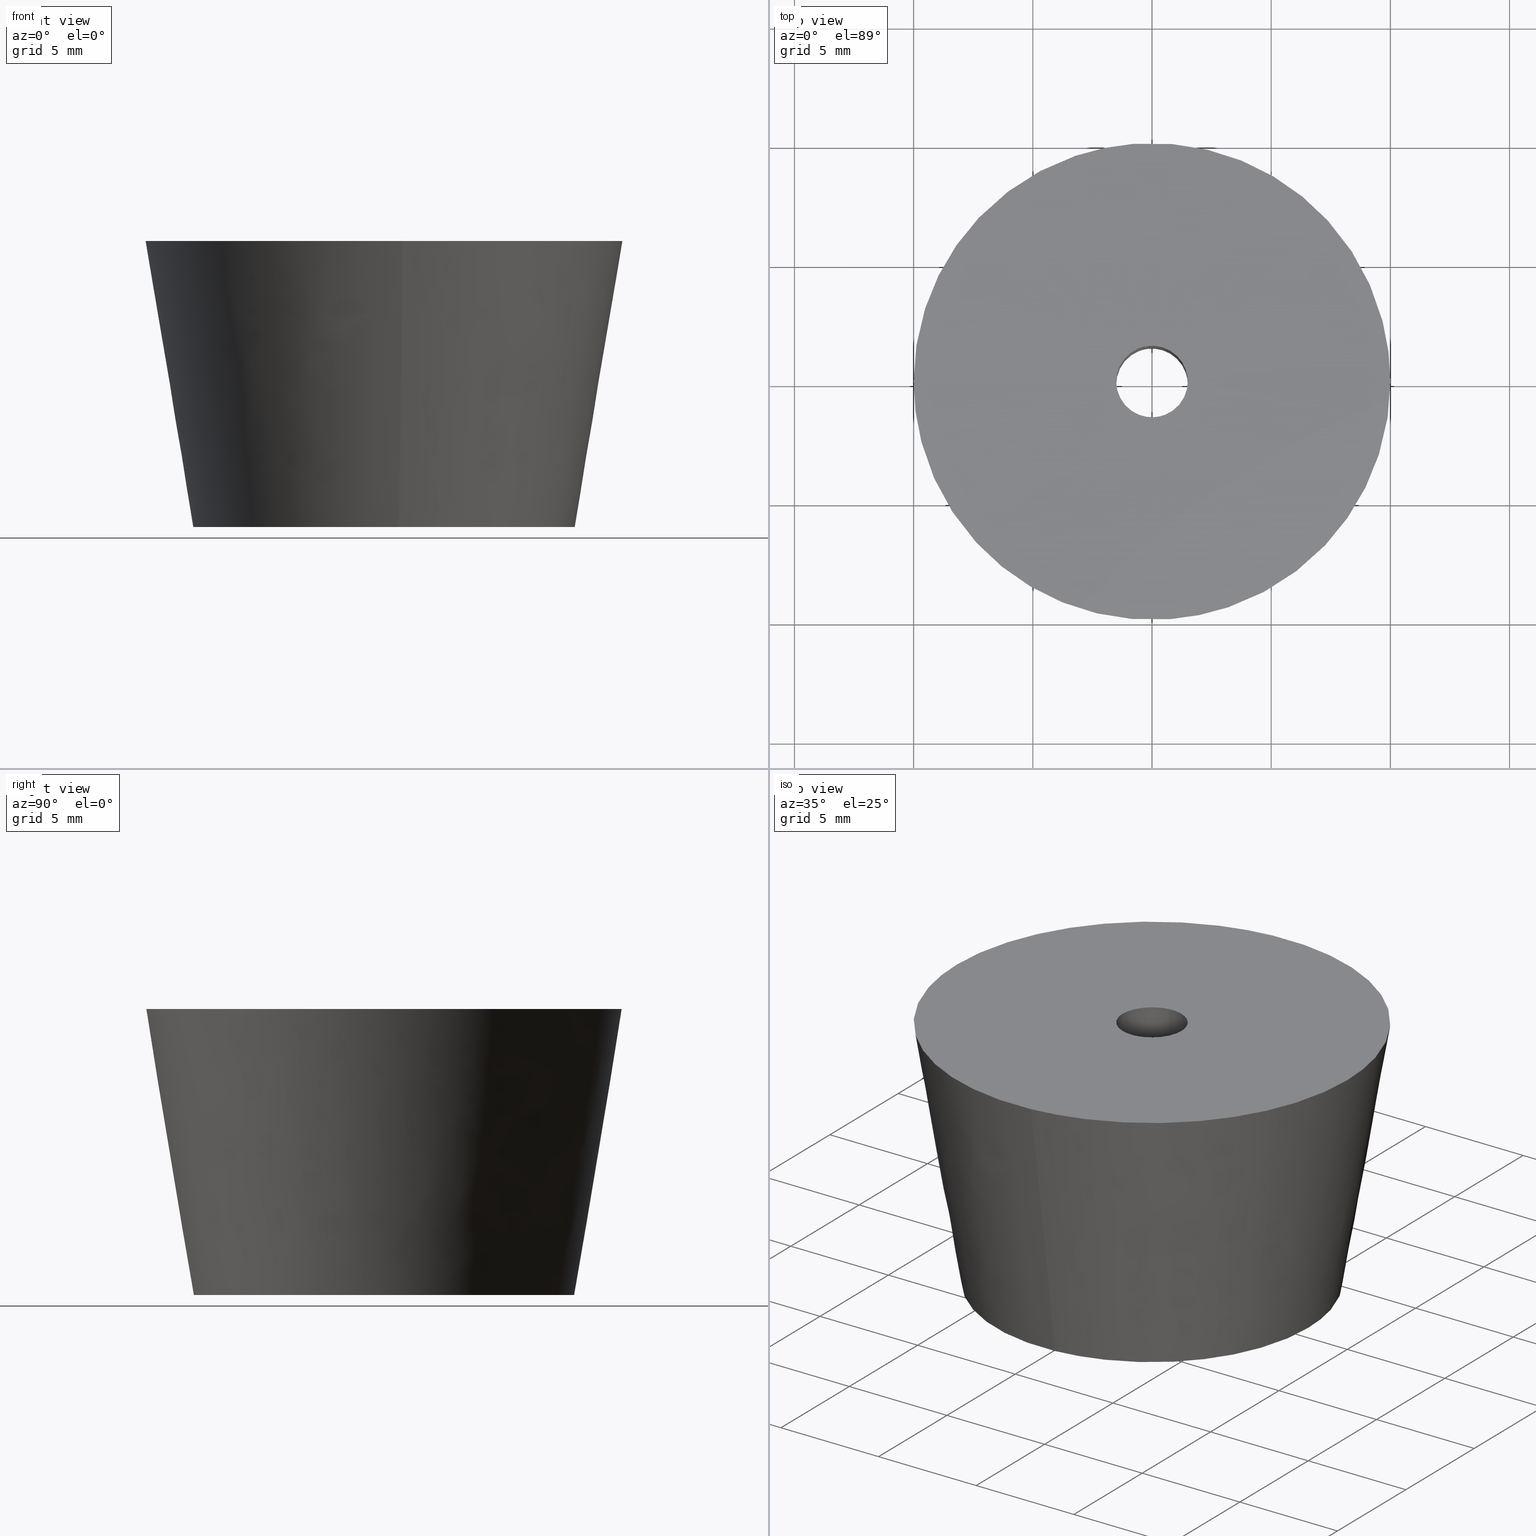
[diagram: canonical four-view strip — front | top / right | iso, engineering-drawing reading convention]
A machine part, canonical four-view strip (front | top / right | iso — engineering-drawing reading convention). The complete STEP part file that produces these views, byte-faithful:
ISO-10303-21;
HEADER;
/****************************************************************
 * Generated by software with PDE/Lib inside                    *
 * PDElib Version 4.4.1-0003, patched  Thursday August 19 11:58 *
 * International Technegroup Inc. (www.iti-oh.com)              *
 ****************************************************************/
FILE_DESCRIPTION((''),'2;1');
FILE_NAME('','2005-12-14T14:09:18',(''),(''),'','CADfix','');
FILE_SCHEMA(('AUTOMOTIVE_DESIGN'));
ENDSEC;
DATA;
#5=APPLICATION_CONTEXT('automotive design');
#6=APPLICATION_PROTOCOL_DEFINITION('Draft International Standard','automotive_design',1998,#5);
#7=PRODUCT_CONTEXT('None',#5,'mechanical');
#8=PRODUCT('rubber foot','','None',(#7));
#9=PRODUCT_RELATED_PRODUCT_CATEGORY('part','description',(#8));
#10=PRODUCT_DEFINITION_FORMATION('None','None',#8);
#11=PRODUCT_DEFINITION_CONTEXT('part definition',#5,'design');
#12=PRODUCT_DEFINITION('None','None',#10,#11);
#18=(NAMED_UNIT(*)PLANE_ANGLE_UNIT()SI_UNIT($,.RADIAN.));
#19=DIMENSIONAL_EXPONENTS(0.0,0.0,0.0,0.0,0.0,0.0,0.0);
#20=PLANE_ANGLE_MEASURE_WITH_UNIT(PLANE_ANGLE_MEASURE(0.017453292500000),#18);
#24=(CONVERSION_BASED_UNIT('DEGREE',#20)NAMED_UNIT(#19)PLANE_ANGLE_UNIT());
#28=(NAMED_UNIT(*)SI_UNIT($,.STERADIAN.)SOLID_ANGLE_UNIT());
#32=(LENGTH_UNIT()NAMED_UNIT(*)SI_UNIT(.MILLI.,.METRE.));
#34=UNCERTAINTY_MEASURE_WITH_UNIT(LENGTH_MEASURE(0.001000000000000),#32,'DISTANCE_ACCURACY_VALUE','');
#36=(GEOMETRIC_REPRESENTATION_CONTEXT(3)GLOBAL_UNCERTAINTY_ASSIGNED_CONTEXT((#34))GLOBAL_UNIT_ASSIGNED_CONTEXT((#24,#28,#32))REPRESENTATION_CONTEXT('None','None'));
#37=AXIS2_PLACEMENT_3D('',#38,#39,#40);
#38=CARTESIAN_POINT('',(0.0,0.0,0.0));
#39=DIRECTION('',(0.0,0.0,1.0));
#40=DIRECTION('',(1.0,0.0,0.0));
#41=ADVANCED_BREP_SHAPE_REPRESENTATION('',(#37,#657),#36);
#42=PRODUCT_DEFINITION_SHAPE('','',#12);
#43=SHAPE_DEFINITION_REPRESENTATION(#42,#41);
#44=CARTESIAN_POINT('',(-0.177051351985138,1.489514289545500,12.175000000000002));
#45=CARTESIAN_POINT('',(-0.134422092956966,1.494581423172908,12.175000000000002));
#46=CARTESIAN_POINT('',(-0.091572809302285,1.497202197632800,12.175000000000001));
#47=CARTESIAN_POINT('',(1.405629388330515,1.588775006935085,12.175000000000001));
#48=CARTESIAN_POINT('',(1.497202197632800,0.091572809302285,12.175000000000001));
#49=CARTESIAN_POINT('',(1.588775006935085,-1.405629388330515,12.175000000000001));
#50=CARTESIAN_POINT('',(0.091572809302285,-1.497202197632800,12.175000000000001));
#51=CARTESIAN_POINT('',(-0.177051351985138,1.489514289545500,4.820625000000000));
#52=CARTESIAN_POINT('',(-0.134422092956966,1.494581423172908,4.820624999999999));
#53=CARTESIAN_POINT('',(-0.091572809302285,1.497202197632800,4.820624999999999));
#54=CARTESIAN_POINT('',(1.405629388330515,1.588775006935085,4.820624999999999));
#55=CARTESIAN_POINT('',(1.497202197632800,0.091572809302285,4.820624999999999));
#56=CARTESIAN_POINT('',(1.588775006935085,-1.405629388330515,4.820624999999999));
#57=CARTESIAN_POINT('',(0.091572809302285,-1.497202197632800,4.820624999999999));
#65=(BOUNDED_SURFACE()B_SPLINE_SURFACE(2,1,((#44,#51),(#45,#52),(#46,#53),(#47,#54),(#48,#55),(#49,#56),(#50,#57)),.UNSPECIFIED.,.F.,.F.,.U.)B_SPLINE_SURFACE_WITH_KNOTS((3,2,2,3),(2,2),(3.078760800517997,3.141592653589793,4.712388980384690,6.283185307179586),(0.0,7.354375000000004),.UNSPECIFIED.)GEOMETRIC_REPRESENTATION_ITEM()RATIONAL_B_SPLINE_SURFACE(((0.977505800795127,0.977505800795127),(0.988284271247462,0.988284271247462),(1.0,1.0),(0.707106781186548,0.707106781186548),(1.0,1.0),(0.707106781186548,0.707106781186548),(1.0,1.0)))REPRESENTATION_ITEM('')SURFACE());
#66=CARTESIAN_POINT('',(-0.177051352012515,1.489514289542246,12.0));
#67=VERTEX_POINT('',#66);
#68=CARTESIAN_POINT('',(1.500000000000000,0.0,12.0));
#69=VERTEX_POINT('',#68);
#70=CARTESIAN_POINT('',(-0.177051352012515,1.489514289542245,12.000000000000002));
#71=CARTESIAN_POINT('',(-0.088836179505531,1.500000000000000,12.0));
#72=CARTESIAN_POINT('',(0.0,1.500000000000000,12.0));
#73=CARTESIAN_POINT('',(1.500000000000000,1.500000000000000,12.0));
#74=CARTESIAN_POINT('',(1.500000000000000,0.0,12.0));
#82=(BOUNDED_CURVE()B_SPLINE_CURVE(2,(#70,#71,#72,#73,#74),.UNSPECIFIED.,.F.,.U.)B_SPLINE_CURVE_WITH_KNOTS((3,2,3),(0.229562473509432,0.250000000000000,0.500000000000000),.UNSPECIFIED.)CURVE()GEOMETRIC_REPRESENTATION_ITEM()RATIONAL_B_SPLINE_CURVE((0.956026754175709,0.976055948326369,1.0,0.707106781186548,1.0))REPRESENTATION_ITEM(''));
#83=EDGE_CURVE('',#67,#69,#82,.T.);
#84=ORIENTED_EDGE('',*,*,#83,.F.);
#85=CARTESIAN_POINT('',(-0.177051352012514,1.489514289542246,5.000000000000001));
#86=VERTEX_POINT('',#85);
#87=CARTESIAN_POINT('',(-0.177051352012515,1.489514289542246,12.0));
#88=CARTESIAN_POINT('',(-0.177051352012514,1.489514289542246,5.000000000000001));
#89=QUASI_UNIFORM_CURVE('',1,(#87,#88),.UNSPECIFIED.,.F.,.U.);
#90=EDGE_CURVE('',#67,#86,#89,.T.);
#91=ORIENTED_EDGE('',*,*,#90,.T.);
#92=CARTESIAN_POINT('',(1.500000000000000,0.0,5.0));
#93=VERTEX_POINT('',#92);
#94=CARTESIAN_POINT('',(-0.177051352012514,1.489514289542245,5.000000000000001));
#95=CARTESIAN_POINT('',(-0.088836179505531,1.500000000000000,5.000000000000001));
#96=CARTESIAN_POINT('',(0.0,1.500000000000000,5.0));
#97=CARTESIAN_POINT('',(1.500000000000000,1.500000000000000,5.000000000000001));
#98=CARTESIAN_POINT('',(1.500000000000000,0.0,5.0));
#106=(BOUNDED_CURVE()B_SPLINE_CURVE(2,(#94,#95,#96,#97,#98),.UNSPECIFIED.,.F.,.U.)B_SPLINE_CURVE_WITH_KNOTS((3,2,3),(0.229562473509432,0.250000000000000,0.500000000000000),.UNSPECIFIED.)CURVE()GEOMETRIC_REPRESENTATION_ITEM()RATIONAL_B_SPLINE_CURVE((0.956026754175709,0.976055948326369,1.0,0.707106781186548,1.0))REPRESENTATION_ITEM(''));
#107=EDGE_CURVE('',#86,#93,#106,.T.);
#108=ORIENTED_EDGE('',*,*,#107,.T.);
#109=CARTESIAN_POINT('',(0.091572809335385,-1.497202197630776,4.999999999999999));
#110=VERTEX_POINT('',#109);
#111=CARTESIAN_POINT('',(1.500000000000000,0.0,5.0));
#112=CARTESIAN_POINT('',(1.500000000000001,-1.411059100296042,5.0));
#113=CARTESIAN_POINT('',(0.091572809335385,-1.497202197630776,4.999999999999999));
#121=(BOUNDED_CURVE()B_SPLINE_CURVE(2,(#111,#112,#113),.UNSPECIFIED.,.F.,.U.)B_SPLINE_CURVE_WITH_KNOTS((3,3),(0.500000000000000,0.739332962234340),.UNSPECIFIED.)CURVE()GEOMETRIC_REPRESENTATION_ITEM()RATIONAL_B_SPLINE_CURVE((1.0,0.719603993292103,0.976072041656852))REPRESENTATION_ITEM(''));
#122=EDGE_CURVE('',#93,#110,#121,.T.);
#123=ORIENTED_EDGE('',*,*,#122,.T.);
#124=CARTESIAN_POINT('',(0.091572809335385,-1.497202197630776,12.0));
#125=VERTEX_POINT('',#124);
#126=CARTESIAN_POINT('',(0.091572809335385,-1.497202197630776,12.0));
#127=CARTESIAN_POINT('',(0.091572809335385,-1.497202197630776,4.999999999999999));
#128=QUASI_UNIFORM_CURVE('',1,(#126,#127),.UNSPECIFIED.,.F.,.U.);
#129=EDGE_CURVE('',#125,#110,#128,.T.);
#130=ORIENTED_EDGE('',*,*,#129,.F.);
#131=CARTESIAN_POINT('',(1.500000000000000,0.0,12.0));
#132=CARTESIAN_POINT('',(1.500000000000001,-1.411059100296042,12.0));
#133=CARTESIAN_POINT('',(0.091572809335385,-1.497202197630776,12.0));
#141=(BOUNDED_CURVE()B_SPLINE_CURVE(2,(#131,#132,#133),.UNSPECIFIED.,.F.,.U.)B_SPLINE_CURVE_WITH_KNOTS((3,3),(0.500000000000000,0.739332962234340),.UNSPECIFIED.)CURVE()GEOMETRIC_REPRESENTATION_ITEM()RATIONAL_B_SPLINE_CURVE((1.0,0.719603993292103,0.976072041656852))REPRESENTATION_ITEM(''));
#142=EDGE_CURVE('',#69,#125,#141,.T.);
#143=ORIENTED_EDGE('',*,*,#142,.F.);
#144=EDGE_LOOP('',(#84,#91,#108,#123,#130,#143));
#145=FACE_OUTER_BOUND('',#144,.T.);
#146=ADVANCED_FACE('',(#145),#65,.F.);
#147=CARTESIAN_POINT('',(0.091572809302285,-1.497202197632800,12.175000000000001));
#148=CARTESIAN_POINT('',(-1.405629388330515,-1.588775006935085,12.175000000000001));
#149=CARTESIAN_POINT('',(-1.497202197632800,-0.091572809302285,12.175000000000001));
#150=CARTESIAN_POINT('',(-1.583679295098791,1.322315236259252,12.175000000000002));
#151=CARTESIAN_POINT('',(-0.177051351985138,1.489514289545500,12.175000000000002));
#152=CARTESIAN_POINT('',(0.091572809302285,-1.497202197632800,4.820624999999999));
#153=CARTESIAN_POINT('',(-1.405629388330515,-1.588775006935085,4.820624999999999));
#154=CARTESIAN_POINT('',(-1.497202197632800,-0.091572809302285,4.820624999999999));
#155=CARTESIAN_POINT('',(-1.583679295098791,1.322315236259252,4.820624999999999));
#156=CARTESIAN_POINT('',(-0.177051351985138,1.489514289545500,4.820625000000000));
#164=(BOUNDED_SURFACE()B_SPLINE_SURFACE(2,1,((#147,#152),(#148,#153),(#149,#154),(#150,#155),(#151,#156)),.UNSPECIFIED.,.F.,.F.,.U.)B_SPLINE_SURFACE_WITH_KNOTS((3,2,3),(2,2),(0.0,1.570796326794897,3.078760800517997),(0.0,7.354375000000004),.UNSPECIFIED.)GEOMETRIC_REPRESENTATION_ITEM()RATIONAL_B_SPLINE_SURFACE(((1.0,1.0),(0.707106781186548,0.707106781186548),(1.0,1.0),(0.718822509939086,0.718822509939086),(0.977505800795127,0.977505800795127)))REPRESENTATION_ITEM('')SURFACE());
#165=CARTESIAN_POINT('',(-1.500000000000000,0.0,12.0));
#166=VERTEX_POINT('',#165);
#167=CARTESIAN_POINT('',(-1.500000000000000,0.0,12.0));
#168=CARTESIAN_POINT('',(-1.500000000000000,1.332261788877733,12.0));
#169=CARTESIAN_POINT('',(-0.177051352012515,1.489514289542246,12.000000000000005));
#177=(BOUNDED_CURVE()B_SPLINE_CURVE(2,(#167,#168,#169),.UNSPECIFIED.,.F.,.U.)B_SPLINE_CURVE_WITH_KNOTS((3,3),(0.0,0.229562473509432),.UNSPECIFIED.)CURVE()GEOMETRIC_REPRESENTATION_ITEM()RATIONAL_B_SPLINE_CURVE((1.0,0.731050832860179,0.956026754175709))REPRESENTATION_ITEM(''));
#178=EDGE_CURVE('',#166,#67,#177,.T.);
#179=ORIENTED_EDGE('',*,*,#178,.F.);
#180=CARTESIAN_POINT('',(0.091572809335385,-1.497202197630776,11.999999999999996));
#181=CARTESIAN_POINT('',(0.045829144981075,-1.500000000000000,12.000000000000005));
#182=CARTESIAN_POINT('',(0.0,-1.500000000000000,12.0));
#183=CARTESIAN_POINT('',(-1.500000000000000,-1.500000000000000,12.0));
#184=CARTESIAN_POINT('',(-1.500000000000000,0.0,12.0));
#192=(BOUNDED_CURVE()B_SPLINE_CURVE(2,(#180,#181,#182,#183,#184),.UNSPECIFIED.,.F.,.U.)B_SPLINE_CURVE_WITH_KNOTS((3,2,3),(0.739332962234339,0.750000000000000,1.0),.UNSPECIFIED.)CURVE()GEOMETRIC_REPRESENTATION_ITEM()RATIONAL_B_SPLINE_CURVE((0.976072041656851,0.987502787894444,1.0,0.707106781186548,1.0))REPRESENTATION_ITEM(''));
#193=EDGE_CURVE('',#125,#166,#192,.T.);
#194=ORIENTED_EDGE('',*,*,#193,.F.);
#195=ORIENTED_EDGE('',*,*,#129,.T.);
#196=CARTESIAN_POINT('',(-1.500000000000000,0.0,5.0));
#197=VERTEX_POINT('',#196);
#198=CARTESIAN_POINT('',(0.091572809335385,-1.497202197630776,4.999999999999999));
#199=CARTESIAN_POINT('',(0.045829144981075,-1.500000000000000,5.0));
#200=CARTESIAN_POINT('',(0.0,-1.500000000000000,5.0));
#201=CARTESIAN_POINT('',(-1.500000000000000,-1.500000000000000,5.000000000000001));
#202=CARTESIAN_POINT('',(-1.500000000000000,0.0,5.0));
#210=(BOUNDED_CURVE()B_SPLINE_CURVE(2,(#198,#199,#200,#201,#202),.UNSPECIFIED.,.F.,.U.)B_SPLINE_CURVE_WITH_KNOTS((3,2,3),(0.739332962234339,0.750000000000000,1.0),.UNSPECIFIED.)CURVE()GEOMETRIC_REPRESENTATION_ITEM()RATIONAL_B_SPLINE_CURVE((0.976072041656851,0.987502787894444,1.0,0.707106781186548,1.0))REPRESENTATION_ITEM(''));
#211=EDGE_CURVE('',#110,#197,#210,.T.);
#212=ORIENTED_EDGE('',*,*,#211,.T.);
#213=CARTESIAN_POINT('',(-1.500000000000000,0.0,5.0));
#214=CARTESIAN_POINT('',(-1.500000000000001,1.332261788877735,4.999999999999999));
#215=CARTESIAN_POINT('',(-0.177051352012514,1.489514289542246,5.000000000000001));
#223=(BOUNDED_CURVE()B_SPLINE_CURVE(2,(#213,#214,#215),.UNSPECIFIED.,.F.,.U.)B_SPLINE_CURVE_WITH_KNOTS((3,3),(0.0,0.229562473509432),.UNSPECIFIED.)CURVE()GEOMETRIC_REPRESENTATION_ITEM()RATIONAL_B_SPLINE_CURVE((1.0,0.731050832860178,0.956026754175709))REPRESENTATION_ITEM(''));
#224=EDGE_CURVE('',#197,#86,#223,.T.);
#225=ORIENTED_EDGE('',*,*,#224,.T.);
#226=ORIENTED_EDGE('',*,*,#90,.F.);
#227=EDGE_LOOP('',(#179,#194,#195,#212,#225,#226));
#228=FACE_OUTER_BOUND('',#227,.T.);
#229=ADVANCED_FACE('',(#228),#164,.F.);
#230=CARTESIAN_POINT('',(-0.623749811036372,7.925492803178367,-0.300000000000000));
#231=CARTESIAN_POINT('',(-8.549242614214739,7.301742992141994,-0.300000000000000));
#232=CARTESIAN_POINT('',(-7.925492803178367,-0.623749811036372,-0.300000000000000));
#233=CARTESIAN_POINT('',(-7.301742992141994,-8.549242614214739,-0.300000000000000));
#234=CARTESIAN_POINT('',(0.623749811036372,-7.925492803178367,-0.300000000000000));
#235=CARTESIAN_POINT('',(-0.788611985934507,10.020265350685101,12.307499999999999));
#236=CARTESIAN_POINT('',(-10.808877336619602,9.231653364750589,12.307500000000005));
#237=CARTESIAN_POINT('',(-10.020265350685101,-0.788611985934507,12.307499999999999));
#238=CARTESIAN_POINT('',(-9.231653364750589,-10.808877336619602,12.307500000000005));
#239=CARTESIAN_POINT('',(0.788611985934507,-10.020265350685101,12.307499999999999));
#247=(BOUNDED_SURFACE()B_SPLINE_SURFACE(2,1,((#230,#235),(#231,#236),(#232,#237),(#233,#238),(#234,#239)),.UNSPECIFIED.,.F.,.F.,.U.)B_SPLINE_SURFACE_WITH_KNOTS((3,2,3),(2,2),(0.0,16.653456275210271,33.306912550420542),(0.0,12.781404766789141),.UNSPECIFIED.)GEOMETRIC_REPRESENTATION_ITEM()RATIONAL_B_SPLINE_SURFACE(((1.0,1.0),(0.707106781186548,0.707106781186548),(1.0,1.0),(0.707106781186548,0.707106781186548),(1.0,1.0)))REPRESENTATION_ITEM('')SURFACE());
#248=CARTESIAN_POINT('',(-10.0,0.0,12.0));
#249=VERTEX_POINT('',#248);
#250=CARTESIAN_POINT('',(-0.784585127532863,9.969173373309561,11.999997470845130));
#251=VERTEX_POINT('',#250);
#252=CARTESIAN_POINT('',(-10.0,0.0,12.0));
#253=CARTESIAN_POINT('',(-9.999999983463788,9.243910098048547,11.999998735422569));
#254=CARTESIAN_POINT('',(-0.784585127532863,9.969173373309561,11.999997470845130));
#262=(BOUNDED_CURVE()B_SPLINE_CURVE(2,(#252,#253,#254),.UNSPECIFIED.,.F.,.U.)B_SPLINE_CURVE_WITH_KNOTS((3,3),(0.0,0.236331400309219),.UNSPECIFIED.)CURVE()GEOMETRIC_REPRESENTATION_ITEM()RATIONAL_B_SPLINE_CURVE((1.0,0.723120541826970,0.969723564189059))REPRESENTATION_ITEM(''));
#263=EDGE_CURVE('',#249,#251,#262,.T.);
#264=ORIENTED_EDGE('',*,*,#263,.T.);
#265=CARTESIAN_POINT('',(-0.627667634998426,7.975338697900941,-0.000002247642436));
#266=VERTEX_POINT('',#265);
#267=CARTESIAN_POINT('',(-0.627667634998426,7.975338697900941,-0.000002247642436));
#268=CARTESIAN_POINT('',(-0.784585127532863,9.969173373309561,11.999997470845130));
#269=QUASI_UNIFORM_CURVE('',1,(#267,#268),.UNSPECIFIED.,.F.,.U.);
#270=EDGE_CURVE('',#266,#251,#269,.T.);
#271=ORIENTED_EDGE('',*,*,#270,.F.);
#272=CARTESIAN_POINT('',(-8.0,0.0,0.0));
#273=VERTEX_POINT('',#272);
#274=CARTESIAN_POINT('',(-8.0,0.0,0.0));
#275=CARTESIAN_POINT('',(-7.999999985304389,7.395128491465187,-0.000001123821218));
#276=CARTESIAN_POINT('',(-0.627667634998426,7.975338697900941,-0.000002247642436));
#284=(BOUNDED_CURVE()B_SPLINE_CURVE(2,(#274,#275,#276),.UNSPECIFIED.,.F.,.U.)B_SPLINE_CURVE_WITH_KNOTS((3,3),(0.0,0.236331410284618),.UNSPECIFIED.)CURVE()GEOMETRIC_REPRESENTATION_ITEM()RATIONAL_B_SPLINE_CURVE((1.0,0.723120530140062,0.969723585006977))REPRESENTATION_ITEM(''));
#285=EDGE_CURVE('',#273,#266,#284,.T.);
#286=ORIENTED_EDGE('',*,*,#285,.F.);
#287=CARTESIAN_POINT('',(0.627667634998426,-7.975338697900941,-0.000002247642436));
#288=VERTEX_POINT('',#287);
#289=CARTESIAN_POINT('',(0.627667634998426,-7.975338697900941,-0.000002247642436));
#290=CARTESIAN_POINT('',(0.314318264650338,-7.999999633327826,-0.000002206826229));
#291=CARTESIAN_POINT('',(-0.000000028280102,-7.999999640664289,-0.000002162671533));
#292=CARTESIAN_POINT('',(-8.000000013584492,-7.999999827391257,-0.000001038850315));
#293=CARTESIAN_POINT('',(-8.0,0.0,0.0));
#301=(BOUNDED_CURVE()B_SPLINE_CURVE(2,(#289,#290,#291,#292,#293),.UNSPECIFIED.,.F.,.U.)B_SPLINE_CURVE_WITH_KNOTS((3,2,3),(0.736331410284618,0.750000000000000,1.0),.UNSPECIFIED.)CURVE()GEOMETRIC_REPRESENTATION_ITEM()RATIONAL_B_SPLINE_CURVE((0.969723585006977,0.983986251046486,1.0,0.707106781186548,1.0))REPRESENTATION_ITEM(''));
#302=EDGE_CURVE('',#288,#273,#301,.T.);
#303=ORIENTED_EDGE('',*,*,#302,.F.);
#304=CARTESIAN_POINT('',(0.784585127532862,-9.969173373309561,11.999997470845139));
#305=VERTEX_POINT('',#304);
#306=CARTESIAN_POINT('',(0.627667634998426,-7.975338697900941,-0.000002247642436));
#307=CARTESIAN_POINT('',(0.784585127532862,-9.969173373309561,11.999997470845139));
#308=QUASI_UNIFORM_CURVE('',1,(#306,#307),.UNSPECIFIED.,.F.,.U.);
#309=EDGE_CURVE('',#288,#305,#308,.T.);
#310=ORIENTED_EDGE('',*,*,#309,.T.);
#311=CARTESIAN_POINT('',(0.784585127532862,-9.969173373309561,11.999997470845143));
#312=CARTESIAN_POINT('',(0.392898125818107,-9.999999587403069,11.999997516773519));
#313=CARTESIAN_POINT('',(-0.000000031822138,-9.999999595658411,11.999997566458530));
#314=CARTESIAN_POINT('',(-10.000000015285925,-9.999999805772458,11.999998831035967));
#315=CARTESIAN_POINT('',(-10.0,0.0,12.0));
#323=(BOUNDED_CURVE()B_SPLINE_CURVE(2,(#311,#312,#313,#314,#315),.UNSPECIFIED.,.F.,.U.)B_SPLINE_CURVE_WITH_KNOTS((3,2,3),(0.736331400309219,0.750000000000000,1.0),.UNSPECIFIED.)CURVE()GEOMETRIC_REPRESENTATION_ITEM()RATIONAL_B_SPLINE_CURVE((0.969723564189059,0.983986239359578,1.0,0.707106781186548,1.0))REPRESENTATION_ITEM(''));
#324=EDGE_CURVE('',#305,#249,#323,.T.);
#325=ORIENTED_EDGE('',*,*,#324,.T.);
#326=EDGE_LOOP('',(#264,#271,#286,#303,#310,#325));
#327=FACE_OUTER_BOUND('',#326,.T.);
#328=ADVANCED_FACE('',(#327),#247,.T.);
#329=CARTESIAN_POINT('',(0.623749811036372,-7.925492803178367,-0.300000000000000));
#330=CARTESIAN_POINT('',(8.549242614214739,-7.301742992141994,-0.300000000000000));
#331=CARTESIAN_POINT('',(7.925492803178367,0.623749811036372,-0.300000000000000));
#332=CARTESIAN_POINT('',(7.301742992141994,8.549242614214739,-0.300000000000000));
#333=CARTESIAN_POINT('',(-0.623749811036372,7.925492803178367,-0.300000000000000));
#334=CARTESIAN_POINT('',(0.788611985934507,-10.020265350685101,12.307499999999999));
#335=CARTESIAN_POINT('',(10.808877336619602,-9.231653364750589,12.307500000000005));
#336=CARTESIAN_POINT('',(10.020265350685101,0.788611985934507,12.307499999999999));
#337=CARTESIAN_POINT('',(9.231653364750589,10.808877336619602,12.307500000000005));
#338=CARTESIAN_POINT('',(-0.788611985934507,10.020265350685101,12.307499999999999));
#346=(BOUNDED_SURFACE()B_SPLINE_SURFACE(2,1,((#329,#334),(#330,#335),(#331,#336),(#332,#337),(#333,#338)),.UNSPECIFIED.,.F.,.F.,.U.)B_SPLINE_SURFACE_WITH_KNOTS((3,2,3),(2,2),(0.0,16.653456275210271,33.306912550420542),(0.0,12.781404766789141),.UNSPECIFIED.)GEOMETRIC_REPRESENTATION_ITEM()RATIONAL_B_SPLINE_SURFACE(((1.0,1.0),(0.707106781186548,0.707106781186548),(1.0,1.0),(0.707106781186548,0.707106781186548),(1.0,1.0)))REPRESENTATION_ITEM('')SURFACE());
#347=CARTESIAN_POINT('',(10.0,0.0,12.0));
#348=VERTEX_POINT('',#347);
#349=CARTESIAN_POINT('',(-0.784585127532863,9.969173373309561,11.999997470845130));
#350=CARTESIAN_POINT('',(-0.392898125818108,9.999999587403069,11.999997516773519));
#351=CARTESIAN_POINT('',(0.000000031822137,9.999999595658411,11.999997566458530));
#352=CARTESIAN_POINT('',(10.000000015285925,9.999999805772458,11.999998831035963));
#353=CARTESIAN_POINT('',(10.0,0.0,12.0));
#361=(BOUNDED_CURVE()B_SPLINE_CURVE(2,(#349,#350,#351,#352,#353),.UNSPECIFIED.,.F.,.U.)B_SPLINE_CURVE_WITH_KNOTS((3,2,3),(0.236331400309219,0.250000000000000,0.500000000000000),.UNSPECIFIED.)CURVE()GEOMETRIC_REPRESENTATION_ITEM()RATIONAL_B_SPLINE_CURVE((0.969723564189059,0.983986239359578,1.0,0.707106781186548,1.0))REPRESENTATION_ITEM(''));
#362=EDGE_CURVE('',#251,#348,#361,.T.);
#363=ORIENTED_EDGE('',*,*,#362,.T.);
#364=CARTESIAN_POINT('',(10.0,0.0,12.0));
#365=CARTESIAN_POINT('',(9.999999983463788,-9.243910098048547,11.999998735422569));
#366=CARTESIAN_POINT('',(0.784585127532862,-9.969173373309561,11.999997470845143));
#374=(BOUNDED_CURVE()B_SPLINE_CURVE(2,(#364,#365,#366),.UNSPECIFIED.,.F.,.U.)B_SPLINE_CURVE_WITH_KNOTS((3,3),(0.500000000000000,0.736331400309219),.UNSPECIFIED.)CURVE()GEOMETRIC_REPRESENTATION_ITEM()RATIONAL_B_SPLINE_CURVE((1.0,0.723120541826970,0.969723564189059))REPRESENTATION_ITEM(''));
#375=EDGE_CURVE('',#348,#305,#374,.T.);
#376=ORIENTED_EDGE('',*,*,#375,.T.);
#377=ORIENTED_EDGE('',*,*,#309,.F.);
#378=CARTESIAN_POINT('',(8.0,0.0,0.0));
#379=VERTEX_POINT('',#378);
#380=CARTESIAN_POINT('',(8.0,0.0,0.0));
#381=CARTESIAN_POINT('',(7.999999985304389,-7.395128491465187,-0.000001123821218));
#382=CARTESIAN_POINT('',(0.627667634998426,-7.975338697900941,-0.000002247642436));
#390=(BOUNDED_CURVE()B_SPLINE_CURVE(2,(#380,#381,#382),.UNSPECIFIED.,.F.,.U.)B_SPLINE_CURVE_WITH_KNOTS((3,3),(0.500000000000000,0.736331410284618),.UNSPECIFIED.)CURVE()GEOMETRIC_REPRESENTATION_ITEM()RATIONAL_B_SPLINE_CURVE((1.0,0.723120530140062,0.969723585006977))REPRESENTATION_ITEM(''));
#391=EDGE_CURVE('',#379,#288,#390,.T.);
#392=ORIENTED_EDGE('',*,*,#391,.F.);
#393=CARTESIAN_POINT('',(-0.627667634998426,7.975338697900941,-0.000002247642436));
#394=CARTESIAN_POINT('',(-0.314318264650338,7.999999633327826,-0.000002206826229));
#395=CARTESIAN_POINT('',(0.000000028280102,7.999999640664289,-0.000002162671533));
#396=CARTESIAN_POINT('',(8.000000013584492,7.999999827391257,-0.000001038850315));
#397=CARTESIAN_POINT('',(8.0,0.0,0.0));
#405=(BOUNDED_CURVE()B_SPLINE_CURVE(2,(#393,#394,#395,#396,#397),.UNSPECIFIED.,.F.,.U.)B_SPLINE_CURVE_WITH_KNOTS((3,2,3),(0.236331410284618,0.250000000000000,0.500000000000000),.UNSPECIFIED.)CURVE()GEOMETRIC_REPRESENTATION_ITEM()RATIONAL_B_SPLINE_CURVE((0.969723585006977,0.983986251046486,1.0,0.707106781186548,1.0))REPRESENTATION_ITEM(''));
#406=EDGE_CURVE('',#266,#379,#405,.T.);
#407=ORIENTED_EDGE('',*,*,#406,.F.);
#408=ORIENTED_EDGE('',*,*,#270,.T.);
#409=EDGE_LOOP('',(#363,#376,#377,#392,#407,#408));
#410=FACE_OUTER_BOUND('',#409,.T.);
#411=ADVANCED_FACE('',(#410),#346,.T.);
#412=CARTESIAN_POINT('',(-0.472136938627034,3.972038105454666,5.125000000000002));
#413=CARTESIAN_POINT('',(-0.358458914551911,3.985550461794422,5.125000000000001));
#414=CARTESIAN_POINT('',(-0.244194158139428,3.992539193687467,5.125000000000001));
#415=CARTESIAN_POINT('',(3.748345035548039,4.236733351826894,5.125000000000001));
#416=CARTESIAN_POINT('',(3.992539193687467,0.244194158139428,5.125000000000001));
#417=CARTESIAN_POINT('',(4.236733351826894,-3.748345035548039,5.125000000000001));
#418=CARTESIAN_POINT('',(0.244194158139428,-3.992539193687467,5.125000000000001));
#419=CARTESIAN_POINT('',(-0.472136938627034,3.972038105454666,-0.128125000000000));
#420=CARTESIAN_POINT('',(-0.358458914551911,3.985550461794422,-0.128125000000000));
#421=CARTESIAN_POINT('',(-0.244194158139428,3.992539193687467,-0.128125000000000));
#422=CARTESIAN_POINT('',(3.748345035548039,4.236733351826894,-0.128125000000000));
#423=CARTESIAN_POINT('',(3.992539193687467,0.244194158139428,-0.128125000000000));
#424=CARTESIAN_POINT('',(4.236733351826894,-3.748345035548039,-0.128125000000000));
#425=CARTESIAN_POINT('',(0.244194158139428,-3.992539193687467,-0.128125000000000));
#433=(BOUNDED_SURFACE()B_SPLINE_SURFACE(2,1,((#412,#419),(#413,#420),(#414,#421),(#415,#422),(#416,#423),(#417,#424),(#418,#425)),.UNSPECIFIED.,.F.,.F.,.U.)B_SPLINE_SURFACE_WITH_KNOTS((3,2,2,3),(2,2),(0.0,0.265096679918781,6.892513677888299,13.519930675857820),(0.0,5.253125000000002),.UNSPECIFIED.)GEOMETRIC_REPRESENTATION_ITEM()RATIONAL_B_SPLINE_SURFACE(((0.977505800795127,0.977505800795127),(0.988284271247462,0.988284271247462),(1.0,1.0),(0.707106781186548,0.707106781186548),(1.0,1.0),(0.707106781186548,0.707106781186548),(1.0,1.0)))REPRESENTATION_ITEM('')SURFACE());
#434=CARTESIAN_POINT('',(-0.472129948118010,3.972038936370151,4.401114E-016));
#435=VERTEX_POINT('',#434);
#436=CARTESIAN_POINT('',(4.0,0.0,0.0));
#437=VERTEX_POINT('',#436);
#438=CARTESIAN_POINT('',(-0.472129948118010,3.972038936370151,4.401114E-016));
#439=CARTESIAN_POINT('',(-0.236892946402667,4.0,0.0));
#440=CARTESIAN_POINT('',(0.0,4.0,0.0));
#441=CARTESIAN_POINT('',(4.000000000000000,4.000000000000000,0.0));
#442=CARTESIAN_POINT('',(4.0,0.0,0.0));
#450=(BOUNDED_CURVE()B_SPLINE_CURVE(2,(#438,#439,#440,#441,#442),.UNSPECIFIED.,.F.,.U.)B_SPLINE_CURVE_WITH_KNOTS((3,2,3),(0.229562770949563,0.250000000000000,0.500000000000000),.UNSPECIFIED.)CURVE()GEOMETRIC_REPRESENTATION_ITEM()RATIONAL_B_SPLINE_CURVE((0.956027337171368,0.976056296799159,1.0,0.707106781186548,1.0))REPRESENTATION_ITEM(''));
#451=EDGE_CURVE('',#435,#437,#450,.T.);
#452=ORIENTED_EDGE('',*,*,#451,.T.);
#453=CARTESIAN_POINT('',(0.244192892551057,-3.992539271093766,2.491063E-015));
#454=VERTEX_POINT('',#453);
#455=CARTESIAN_POINT('',(4.0,0.0,0.0));
#456=CARTESIAN_POINT('',(4.000000000000001,-3.762825462623270,0.0));
#457=CARTESIAN_POINT('',(0.244192892551057,-3.992539271093766,2.491063E-015));
#465=(BOUNDED_CURVE()B_SPLINE_CURVE(2,(#455,#456,#457),.UNSPECIFIED.,.F.,.U.)B_SPLINE_CURVE_WITH_KNOTS((3,3),(0.500000000000000,0.739333016937291),.UNSPECIFIED.)CURVE()GEOMETRIC_REPRESENTATION_ITEM()RATIONAL_B_SPLINE_CURVE((1.0,0.719603929203609,0.976072158895718))REPRESENTATION_ITEM(''));
#466=EDGE_CURVE('',#437,#454,#465,.T.);
#467=ORIENTED_EDGE('',*,*,#466,.T.);
#468=CARTESIAN_POINT('',(0.244192908142875,-3.992539270140139,5.0));
#469=VERTEX_POINT('',#468);
#470=CARTESIAN_POINT('',(0.244192908142875,-3.992539270140139,5.0));
#471=CARTESIAN_POINT('',(0.244192892551057,-3.992539271093766,2.491063E-015));
#472=QUASI_UNIFORM_CURVE('',1,(#470,#471),.UNSPECIFIED.,.F.,.U.);
#473=EDGE_CURVE('',#469,#454,#472,.T.);
#474=ORIENTED_EDGE('',*,*,#473,.F.);
#475=CARTESIAN_POINT('',(4.0,0.0,5.0));
#476=VERTEX_POINT('',#475);
#477=CARTESIAN_POINT('',(4.0,0.0,5.0));
#478=CARTESIAN_POINT('',(4.0,-3.762825447901077,5.0));
#479=CARTESIAN_POINT('',(0.244192908142875,-3.992539270140139,5.000000000000001));
#487=(BOUNDED_CURVE()B_SPLINE_CURVE(2,(#477,#478,#479),.UNSPECIFIED.,.F.,.U.)B_SPLINE_CURVE_WITH_KNOTS((3,3),(0.500000000000000,0.739333016263454),.UNSPECIFIED.)CURVE()GEOMETRIC_REPRESENTATION_ITEM()RATIONAL_B_SPLINE_CURVE((1.0,0.719603929993058,0.976072157451557))REPRESENTATION_ITEM(''));
#488=EDGE_CURVE('',#476,#469,#487,.T.);
#489=ORIENTED_EDGE('',*,*,#488,.F.);
#490=CARTESIAN_POINT('',(-0.472130034368349,3.972038926118297,5.0));
#491=VERTEX_POINT('',#490);
#492=CARTESIAN_POINT('',(-0.472130034368349,3.972038926118297,5.0));
#493=CARTESIAN_POINT('',(-0.236892989983728,4.0,5.0));
#494=CARTESIAN_POINT('',(0.0,4.0,5.0));
#495=CARTESIAN_POINT('',(4.000000000000000,4.000000000000000,5.000000000000001));
#496=CARTESIAN_POINT('',(4.0,0.0,5.0));
#504=(BOUNDED_CURVE()B_SPLINE_CURVE(2,(#492,#493,#494,#495,#496),.UNSPECIFIED.,.F.,.U.)B_SPLINE_CURVE_WITH_KNOTS((3,2,3),(0.229562767279762,0.250000000000000,0.500000000000000),.UNSPECIFIED.)CURVE()GEOMETRIC_REPRESENTATION_ITEM()RATIONAL_B_SPLINE_CURVE((0.956027329978387,0.976056292499719,1.0,0.707106781186548,1.0))REPRESENTATION_ITEM(''));
#505=EDGE_CURVE('',#491,#476,#504,.T.);
#506=ORIENTED_EDGE('',*,*,#505,.F.);
#507=CARTESIAN_POINT('',(-0.472130034368349,3.972038926118297,5.0));
#508=CARTESIAN_POINT('',(-0.472129948118010,3.972038936370151,4.401114E-016));
#509=QUASI_UNIFORM_CURVE('',1,(#507,#508),.UNSPECIFIED.,.F.,.U.);
#510=EDGE_CURVE('',#491,#435,#509,.T.);
#511=ORIENTED_EDGE('',*,*,#510,.T.);
#512=EDGE_LOOP('',(#452,#467,#474,#489,#506,#511));
#513=FACE_OUTER_BOUND('',#512,.T.);
#514=ADVANCED_FACE('',(#513),#433,.F.);
#515=CARTESIAN_POINT('',(0.299210877255858,-3.989174226994221,5.124999999999999));
#516=CARTESIAN_POINT('',(0.271781248688852,-3.990851894947137,5.125000000000003));
#517=CARTESIAN_POINT('',(-3.748345035548039,-4.236733351826894,5.125000000000001));
#518=CARTESIAN_POINT('',(-3.992539193687467,-0.244194158139428,5.125000000000001));
#519=CARTESIAN_POINT('',(-4.223144786930110,3.526173963358004,5.125000000000001));
#520=CARTESIAN_POINT('',(-0.444051096566787,3.975376533520318,5.125000000000002));
#521=CARTESIAN_POINT('',(-0.416116205152481,3.978697018813527,5.125000000000002));
#522=CARTESIAN_POINT('',(0.299210877255858,-3.989174226994221,-0.128125000000000));
#523=CARTESIAN_POINT('',(0.271781248688852,-3.990851894947137,-0.128125000000000));
#524=CARTESIAN_POINT('',(-3.748345035548039,-4.236733351826894,-0.128125000000000));
#525=CARTESIAN_POINT('',(-3.992539193687467,-0.244194158139428,-0.128125000000000));
#526=CARTESIAN_POINT('',(-4.223144786930110,3.526173963358004,-0.128125000000000));
#527=CARTESIAN_POINT('',(-0.444051096566787,3.975376533520318,-0.128125000000000));
#528=CARTESIAN_POINT('',(-0.416116205152481,3.978697018813527,-0.128125000000000));
#536=(BOUNDED_SURFACE()B_SPLINE_SURFACE(2,1,((#515,#522),(#516,#523),(#517,#524),(#518,#525),(#519,#526),(#520,#527),(#521,#528)),.UNSPECIFIED.,.F.,.F.,.U.)B_SPLINE_SURFACE_WITH_KNOTS((3,1,2,1,3),(2,2),(0.0,0.064947250903946,6.692364248873464,13.054684566924200,13.119641347048271),(0.0,5.253125000000002),.UNSPECIFIED.)GEOMETRIC_REPRESENTATION_ITEM()RATIONAL_B_SPLINE_SURFACE(((1.005740580191701,1.005740580191701),(1.002870290095850,1.002870290095850),(0.707106781186548,0.707106781186548),(1.0,1.0),(0.718822509939086,0.718822509939086),(0.980146855128439,0.980146855128439),(0.982787909461751,0.982787909461751)))REPRESENTATION_ITEM('')SURFACE());
#537=CARTESIAN_POINT('',(-4.0,0.0,0.0));
#538=VERTEX_POINT('',#537);
#539=CARTESIAN_POINT('',(-4.0,0.0,0.0));
#540=CARTESIAN_POINT('',(-4.000000000000000,3.552704400324676,0.0));
#541=CARTESIAN_POINT('',(-0.472129948118010,3.972038936370151,4.401114E-016));
#549=(BOUNDED_CURVE()B_SPLINE_CURVE(2,(#539,#540,#541),.UNSPECIFIED.,.F.,.U.)B_SPLINE_CURVE_WITH_KNOTS((3,3),(0.0,0.229562770949563),.UNSPECIFIED.)CURVE()GEOMETRIC_REPRESENTATION_ITEM()RATIONAL_B_SPLINE_CURVE((1.0,0.731050484387389,0.956027337171368))REPRESENTATION_ITEM(''));
#550=EDGE_CURVE('',#538,#435,#549,.T.);
#551=ORIENTED_EDGE('',*,*,#550,.T.);
#552=ORIENTED_EDGE('',*,*,#510,.F.);
#553=CARTESIAN_POINT('',(-4.0,0.0,5.0));
#554=VERTEX_POINT('',#553);
#555=CARTESIAN_POINT('',(-4.0,0.0,5.0));
#556=CARTESIAN_POINT('',(-4.000000000000001,3.552704322636881,4.999999999999999));
#557=CARTESIAN_POINT('',(-0.472130034368349,3.972038926118297,5.0));
#565=(BOUNDED_CURVE()B_SPLINE_CURVE(2,(#555,#556,#557),.UNSPECIFIED.,.F.,.U.)B_SPLINE_CURVE_WITH_KNOTS((3,3),(0.0,0.229562767279762),.UNSPECIFIED.)CURVE()GEOMETRIC_REPRESENTATION_ITEM()RATIONAL_B_SPLINE_CURVE((1.0,0.731050488686828,0.956027329978387))REPRESENTATION_ITEM(''));
#566=EDGE_CURVE('',#554,#491,#565,.T.);
#567=ORIENTED_EDGE('',*,*,#566,.F.);
#568=CARTESIAN_POINT('',(0.244192908142875,-3.992539270140139,5.000000000000001));
#569=CARTESIAN_POINT('',(0.122210426443661,-4.0,4.999999999999999));
#570=CARTESIAN_POINT('',(0.0,-4.0,5.0));
#571=CARTESIAN_POINT('',(-4.000000000000000,-4.000000000000000,5.000000000000001));
#572=CARTESIAN_POINT('',(-4.0,0.0,5.0));
#580=(BOUNDED_CURVE()B_SPLINE_CURVE(2,(#568,#569,#570,#571,#572),.UNSPECIFIED.,.F.,.U.)B_SPLINE_CURVE_WITH_KNOTS((3,2,3),(0.739333016263454,0.750000000000000,1.0),.UNSPECIFIED.)CURVE()GEOMETRIC_REPRESENTATION_ITEM()RATIONAL_B_SPLINE_CURVE((0.976072157451557,0.987502851193490,1.0,0.707106781186548,1.0))REPRESENTATION_ITEM(''));
#581=EDGE_CURVE('',#469,#554,#580,.T.);
#582=ORIENTED_EDGE('',*,*,#581,.F.);
#583=ORIENTED_EDGE('',*,*,#473,.T.);
#584=CARTESIAN_POINT('',(0.244192892551057,-3.992539271093766,2.491063E-015));
#585=CARTESIAN_POINT('',(0.122210418625892,-4.000000000000001,0.0));
#586=CARTESIAN_POINT('',(0.0,-4.0,0.0));
#587=CARTESIAN_POINT('',(-4.000000000000000,-4.000000000000000,0.0));
#588=CARTESIAN_POINT('',(-4.0,0.0,0.0));
#596=(BOUNDED_CURVE()B_SPLINE_CURVE(2,(#584,#585,#586,#587,#588),.UNSPECIFIED.,.F.,.U.)B_SPLINE_CURVE_WITH_KNOTS((3,2,3),(0.739333016937291,0.750000000000000,1.0),.UNSPECIFIED.)CURVE()GEOMETRIC_REPRESENTATION_ITEM()RATIONAL_B_SPLINE_CURVE((0.976072158895718,0.987502851982938,1.0,0.707106781186548,1.0))REPRESENTATION_ITEM(''));
#597=EDGE_CURVE('',#454,#538,#596,.T.);
#598=ORIENTED_EDGE('',*,*,#597,.T.);
#599=EDGE_LOOP('',(#551,#552,#567,#582,#583,#598));
#600=FACE_OUTER_BOUND('',#599,.T.);
#601=ADVANCED_FACE('',(#600),#536,.F.);
#602=CARTESIAN_POINT('',(-10.998999961236120,-10.995946517086031,12.0));
#603=CARTESIAN_POINT('',(10.999000497677921,-10.995946517086031,12.0));
#604=CARTESIAN_POINT('',(-10.998999961236120,10.995946517086031,12.0));
#605=CARTESIAN_POINT('',(10.999000497677921,10.995946517086031,12.0));
#606=B_SPLINE_SURFACE_WITH_KNOTS('',1,1,((#602,#604),(#603,#605)),.UNSPECIFIED.,.F.,.F.,.U.,(2,2),(2,2),(0.0,21.998000458914039),(0.0,21.991893034172062),.UNSPECIFIED.);
#607=ORIENTED_EDGE('',*,*,#324,.F.);
#608=ORIENTED_EDGE('',*,*,#375,.F.);
#609=ORIENTED_EDGE('',*,*,#362,.F.);
#610=ORIENTED_EDGE('',*,*,#263,.F.);
#611=EDGE_LOOP('',(#607,#608,#609,#610));
#612=FACE_OUTER_BOUND('',#611,.T.);
#613=ORIENTED_EDGE('',*,*,#142,.T.);
#614=ORIENTED_EDGE('',*,*,#193,.T.);
#615=ORIENTED_EDGE('',*,*,#178,.T.);
#616=ORIENTED_EDGE('',*,*,#83,.T.);
#617=EDGE_LOOP('',(#613,#614,#615,#616));
#618=FACE_BOUND('',#617,.T.);
#619=ADVANCED_FACE('',(#612,#618),#606,.T.);
#620=CARTESIAN_POINT('',(8.799199968988896,-8.796757514061929,0.0));
#621=CARTESIAN_POINT('',(-8.799200398142338,-8.796757514061929,0.0));
#622=CARTESIAN_POINT('',(8.799199968988896,8.796757227959633,0.0));
#623=CARTESIAN_POINT('',(-8.799200398142338,8.796757227959633,0.0));
#624=B_SPLINE_SURFACE_WITH_KNOTS('',1,1,((#620,#622),(#621,#623)),.UNSPECIFIED.,.F.,.F.,.U.,(2,2),(2,2),(0.0,17.598400367131230),(0.0,17.593514742021561),.UNSPECIFIED.);
#625=ORIENTED_EDGE('',*,*,#285,.T.);
#626=ORIENTED_EDGE('',*,*,#406,.T.);
#627=ORIENTED_EDGE('',*,*,#391,.T.);
#628=ORIENTED_EDGE('',*,*,#302,.T.);
#629=EDGE_LOOP('',(#625,#626,#627,#628));
#630=FACE_OUTER_BOUND('',#629,.T.);
#631=ORIENTED_EDGE('',*,*,#466,.F.);
#632=ORIENTED_EDGE('',*,*,#451,.F.);
#633=ORIENTED_EDGE('',*,*,#550,.F.);
#634=ORIENTED_EDGE('',*,*,#597,.F.);
#635=EDGE_LOOP('',(#631,#632,#633,#634));
#636=FACE_BOUND('',#635,.T.);
#637=ADVANCED_FACE('',(#630,#636),#624,.T.);
#638=CARTESIAN_POINT('',(4.399599984494448,-4.399502853344672,5.0));
#639=CARTESIAN_POINT('',(-4.399600199071169,-4.399502853344672,5.0));
#640=CARTESIAN_POINT('',(4.399599984494448,4.399527243565315,5.0));
#641=CARTESIAN_POINT('',(-4.399600199071169,4.399527243565315,5.0));
#642=B_SPLINE_SURFACE_WITH_KNOTS('',1,1,((#638,#640),(#639,#641)),.UNSPECIFIED.,.F.,.F.,.U.,(2,2),(2,2),(0.0,8.799200183565617),(0.0,8.799030096909988),.UNSPECIFIED.);
#643=ORIENTED_EDGE('',*,*,#566,.T.);
#644=ORIENTED_EDGE('',*,*,#505,.T.);
#645=ORIENTED_EDGE('',*,*,#488,.T.);
#646=ORIENTED_EDGE('',*,*,#581,.T.);
#647=EDGE_LOOP('',(#643,#644,#645,#646));
#648=FACE_OUTER_BOUND('',#647,.T.);
#649=ORIENTED_EDGE('',*,*,#122,.F.);
#650=ORIENTED_EDGE('',*,*,#107,.F.);
#651=ORIENTED_EDGE('',*,*,#224,.F.);
#652=ORIENTED_EDGE('',*,*,#211,.F.);
#653=EDGE_LOOP('',(#649,#650,#651,#652));
#654=FACE_BOUND('',#653,.T.);
#655=ADVANCED_FACE('',(#648,#654),#642,.T.);
#656=CLOSED_SHELL('',(#146,#229,#328,#411,#514,#601,#619,#637,#655));
#657=MANIFOLD_SOLID_BREP('rubber foot',#656);
#663=(NAMED_UNIT(*)PLANE_ANGLE_UNIT()SI_UNIT($,.RADIAN.));
#664=DIMENSIONAL_EXPONENTS(0.0,0.0,0.0,0.0,0.0,0.0,0.0);
#665=PLANE_ANGLE_MEASURE_WITH_UNIT(PLANE_ANGLE_MEASURE(0.017453292500000),#663);
#669=(CONVERSION_BASED_UNIT('DEGREE',#665)NAMED_UNIT(#664)PLANE_ANGLE_UNIT());
#673=(NAMED_UNIT(*)SI_UNIT($,.STERADIAN.)SOLID_ANGLE_UNIT());
#677=(LENGTH_UNIT()NAMED_UNIT(*)SI_UNIT(.MILLI.,.METRE.));
#679=UNCERTAINTY_MEASURE_WITH_UNIT(LENGTH_MEASURE(0.001000000000000),#677,'DISTANCE_ACCURACY_VALUE','');
#681=(GEOMETRIC_REPRESENTATION_CONTEXT(3)GLOBAL_UNCERTAINTY_ASSIGNED_CONTEXT((#679))GLOBAL_UNIT_ASSIGNED_CONTEXT((#669,#673,#677))REPRESENTATION_CONTEXT('','3D'));
ENDSEC;
END-ISO-10303-21;
